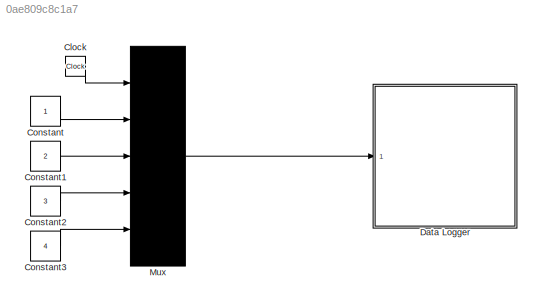
MODEL slx_0ae809c8c1a7
KIND model
CONFIG AbsTol = auto
CONFIG EnableMultiTasking = on
CONFIG FixedStep = 0.01
CONFIG MaxStep = auto
CONFIG MinStep = auto
CONFIG RelTol = 1e-3
CONFIG SampleTimeConstraint = Unconstrained
CONFIG Solver = FixedStepAuto
CONFIG SolverName = FixedStepAuto
CONFIG StartTime = 0.0
CONFIG StopTime = 10
BLOCK [Clock] Clock
BLOCK [Constant] Constant
BLOCK [Constant] Constant1
  Value = 2
BLOCK [Constant] Constant2
  Value = 3
BLOCK [Constant] Constant3
  Value = 4
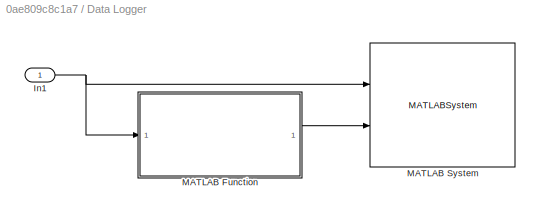
BLOCK [SubSystem] Data Logger
  Ports = [1]
  RequestExecContextInheritance = off
BLOCK [Inport] Data Logger/In1
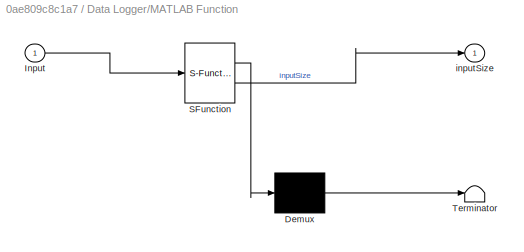
BLOCK [SubSystem] Data Logger/MATLAB Function
  ErrorFcn = Stateflow.Translate.translate
  PermitHierarchicalResolution = ExplicitOnly
  Ports = [1, 1]
  RequestExecContextInheritance = off
  SFBlockType = MATLAB Function
  TreatAsAtomicUnit = on
BLOCK [Demux] Data Logger/MATLAB Function/ Demux 
  Outputs = 1
  Ports = [1, 1]
BLOCK [S-Function] Data Logger/MATLAB Function/ SFunction 
  EnableBusSupport = on
  FunctionName = sf_sfun
  PortCounts = [1 2]
  Ports = [1, 2]
  SFcnIsStateOwnerBlock = off
  SFunctionDeploymentMode = off
  Tag = Stateflow S-Function 2
BLOCK [Terminator] Data Logger/MATLAB Function/ Terminator 
BLOCK [Inport] Data Logger/MATLAB Function/Input
BLOCK [Outport] Data Logger/MATLAB Function/inputSize
BLOCK [MATLABSystem] Data Logger/MATLAB System
  MaskDisplay = disp('CustomDataLogger');\nport_label('input',1,'u1');\nport_label('input',2,'u2');
  MaskType = CustomDataLogger
  Ports = [2]
  System = CustomDataLogger
BLOCK [Mux] Mux
  DisplayOption = bar
  Inputs = 5
  Ports = [5, 1]
LINE Clock:1 -> Mux:1
LINE Constant1:1 -> Mux:3
LINE Constant2:1 -> Mux:4
LINE Constant3:1 -> Mux:5
LINE Constant:1 -> Mux:2
NET Data Logger/In1:1 -> Data Logger/MATLAB Function:1, Data Logger/MATLAB System:1
LINE Data Logger/MATLAB Function:1 -> Data Logger/MATLAB System:2
LINE Mux:1 -> Data Logger:1
note: NET lines group one-source signal fan-out (src -> all destinations, sorted); 1:1 wires keep LINE
CHART Data Logger/MATLAB Function states=1 transitions=1
  STATE_LABEL 'eML_blk_kernel()'
  STATE_LABEL 'SCRIPT:\nfunction inputSize = getSizeInput(Input)\n\n    inputSize = max(size(Input));\n\nend'
CHART  states=0 transitions=0
